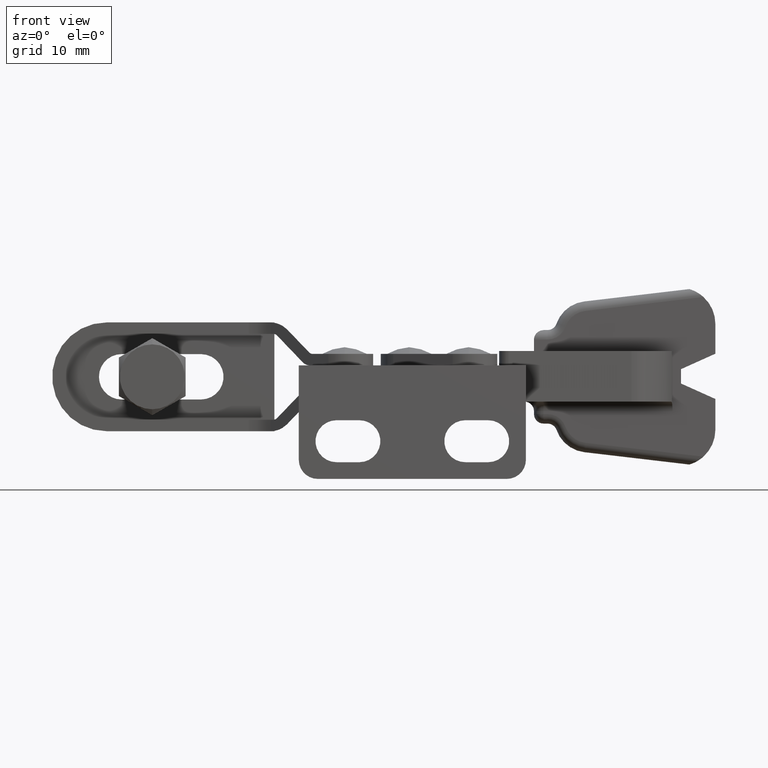
[diagram: clean part render]
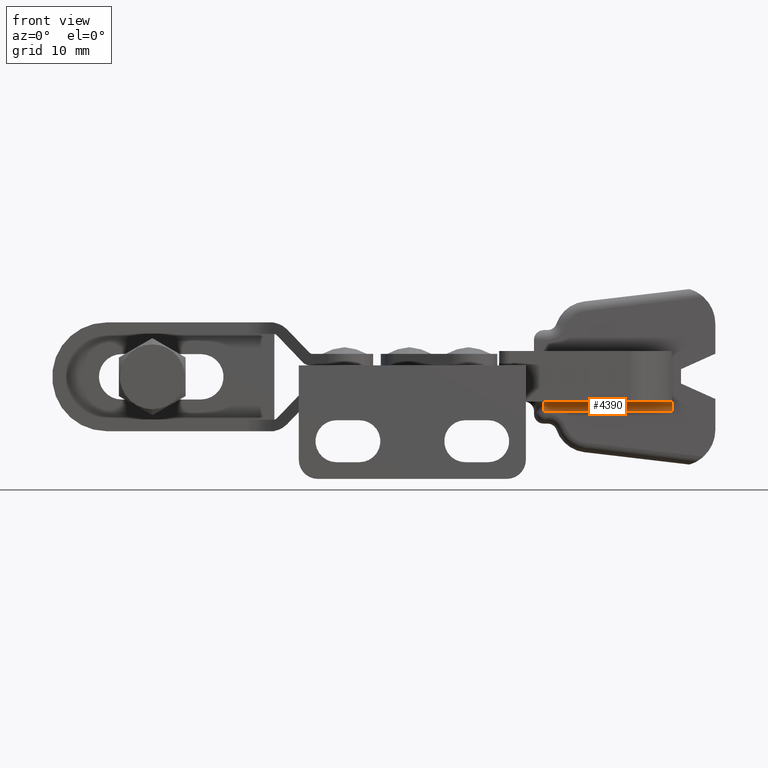
[diagram: same view with one face highlighted and labeled with its STEP entity id]
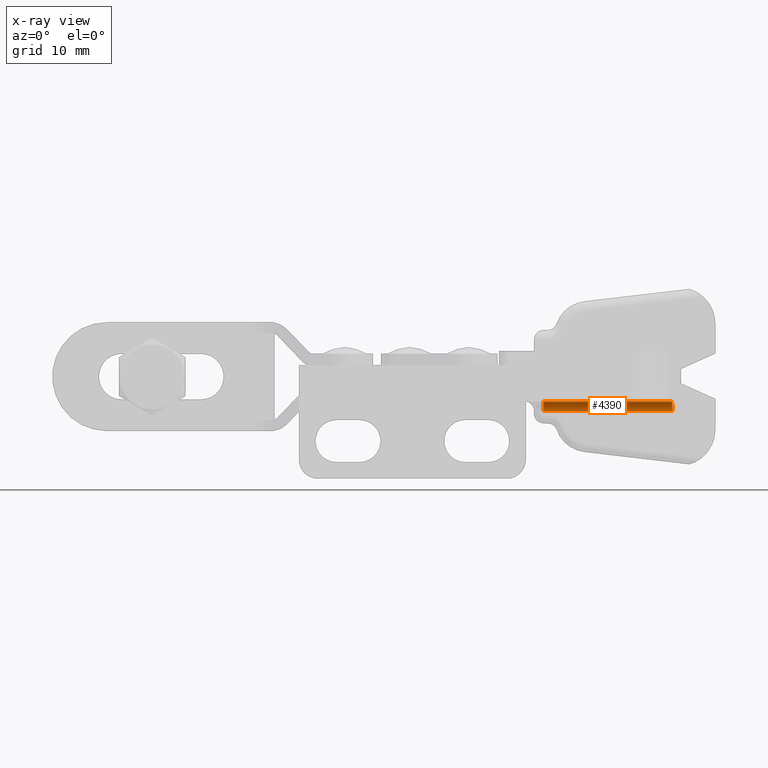
[diagram: x-ray of the same camera — body ghosted, the highlighted face saturated]
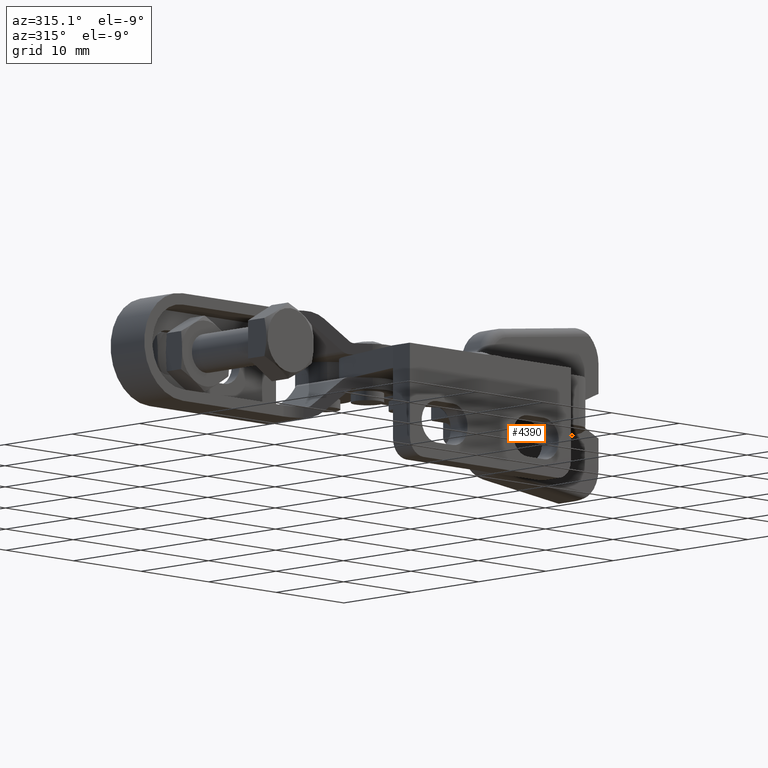
[diagram: same view with one face highlighted and labeled with its STEP entity id]
A machine part, front view. The second image highlights one B-rep face of the part: STEP entity #4390.
The next image is the same camera in x-ray: the body ghosted, the highlighted face saturated — about 0% of this face is hidden behind the body in this view.
A second angle (auxiliary view) of the same face is appended — the face is thin or edge-on in the first view.
In plain terms, the highlighted cylindrical surface (edge-blend (fillet) strip) has radius 1 mm, axis along (1, 0, 0).
Its self-contained STEP definition (entity closure, byte-faithful):
#126 = ORIENTED_EDGE ( 'NONE', *, *, #6259, .F. ) ;
#365 = EDGE_CURVE ( 'NONE', #4287, #5183, #3924, .T. ) ;
#521 = CARTESIAN_POINT ( 'NONE',  ( 39.15794684305910800, 15.80010390606980900, -3.600000000000005400 ) ) ;
#768 = LINE ( 'NONE', #2603, #8571 ) ;
#836 = DIRECTION ( 'NONE',  ( 0.9999999999956429300, 2.952003684069184900E-006, 0.0000000000000000000 ) ) ;
#1036 = CARTESIAN_POINT ( 'NONE',  ( 25.64798475125412500, 14.80006402460758400, -2.600000000000001900 ) ) ;
#1115 = CARTESIAN_POINT ( 'NONE',  ( 39.15500161006630000, 15.76140955872180500, -3.280321963074525300 ) ) ;
#1274 = CARTESIAN_POINT ( 'NONE',  ( 25.64798475125412500, 14.80006402460758400, -3.600000000000001900 ) ) ;
#1347 = ORIENTED_EDGE ( 'NONE', *, *, #365, .F. ) ;
#1665 = CARTESIAN_POINT ( 'NONE',  ( 39.10174319541200600, 15.23786983173046000, -2.696374666031764500 ) ) ;
#1835 = ORIENTED_EDGE ( 'NONE', *, *, #3674, .F. ) ;
#1987 = DIRECTION ( 'NONE',  ( -2.952003684900116200E-006, 0.9999999999956428200, 0.0000000000000000000 ) ) ;
#2024 = DIRECTION ( 'NONE',  ( 0.0000000000000000000, 0.0000000000000000000, -1.000000000000000000 ) ) ;
#2312 = EDGE_CURVE ( 'NONE', #4839, #4287, #768, .T. ) ;
#2346 = CARTESIAN_POINT ( 'NONE',  ( 39.04550936739934000, 14.89054046398708000, -2.600000000000001400 ) ) ;
#2374 = ORIENTED_EDGE ( 'NONE', *, *, #6654, .F. ) ;
#2409 = CARTESIAN_POINT ( 'NONE',  ( 39.02742774414829100, 14.80010352077259100, -2.600000000000001900 ) ) ;
#2516 =( BOUNDED_CURVE ( )  B_SPLINE_CURVE ( 3, ( #7961, #1115, #8746, #4369 ),
 .UNSPECIFIED., .F., .T. ) 
 B_SPLINE_CURVE_WITH_KNOTS ( ( 4, 4 ),
 ( 5.801362884906068600, 6.283185307179589800 ),
 .UNSPECIFIED. ) 
 CURVE ( )  GEOMETRIC_REPRESENTATION_ITEM ( )  RATIONAL_B_SPLINE_CURVE ( ( 1.000000000000000000, 0.9807473162318984800, 0.9807473162318984800, 1.000000000000000000 ) ) 
 REPRESENTATION_ITEM ( '' )  );
#2582 = FACE_OUTER_BOUND ( 'NONE', #6748, .T. ) ;
#2603 = CARTESIAN_POINT ( 'NONE',  ( 39.15794979506279100, 14.80010390607416700, -2.600000000000001900 ) ) ;
#2829 = CARTESIAN_POINT ( 'NONE',  ( 25.64798179925044200, 15.80006402460322900, -3.600000000000005400 ) ) ;
#2927 = CARTESIAN_POINT ( 'NONE',  ( 39.14928125499898900, 15.68625577412509400, -3.136605112885112200 ) ) ;
#2960 = DIRECTION ( 'NONE',  ( -0.9999999999956428200, -2.952003684069184500E-006, 0.0000000000000000000 ) ) ;
#3577 = CARTESIAN_POINT ( 'NONE',  ( 39.13131901076200600, 15.47037764635855700, -2.836164554242166100 ) ) ;
#3674 = EDGE_CURVE ( 'NONE', #5183, #4078, #2516, .T. ) ;
#3761 = CARTESIAN_POINT ( 'NONE',  ( 39.02742774414829100, 14.80010352077259100, -2.600000000000001900 ) ) ;
#3924 = B_SPLINE_CURVE_WITH_KNOTS ( 'NONE', 3,
 ( #2409, #2346, #7641, #6948, #1665, #3577, #8670, #7055 ),
 .UNSPECIFIED., .F., .F.,
 ( 4, 2, 2, 4 ),
 ( 0.0000000000000000000, 0.0002728234911347998800, 0.0005456469822695997500, 0.001091293964539197100 ),
 .UNSPECIFIED. ) ;
#4050 = CYLINDRICAL_SURFACE ( 'NONE', #6616, 1.000000000000000400 ) ;
#4078 = VERTEX_POINT ( 'NONE', #521 ) ;
#4287 = VERTEX_POINT ( 'NONE', #3761 ) ;
#4369 = CARTESIAN_POINT ( 'NONE',  ( 39.15794684305910800, 15.80010390606980900, -3.600000000000005400 ) ) ;
#4390 = ADVANCED_FACE ( 'NONE', ( #2582 ), #4050, .F. ) ;
#4839 = VERTEX_POINT ( 'NONE', #1036 ) ;
#4878 = ORIENTED_EDGE ( 'NONE', *, *, #2312, .F. ) ;
#5025 = CARTESIAN_POINT ( 'NONE',  ( 11.58574352799586800, 14.80002251281968900, -3.600000000000001900 ) ) ;
#5067 = LINE ( 'NONE', #7526, #9235 ) ;
#5108 = VERTEX_POINT ( 'NONE', #2829 ) ;
#5183 = VERTEX_POINT ( 'NONE', #2927 ) ;
#6259 = EDGE_CURVE ( 'NONE', #4078, #5108, #5067, .T. ) ;
#6483 = DIRECTION ( 'NONE',  ( 0.9999999999956428200, 2.952003684069184500E-006, -0.0000000000000000000 ) ) ;
#6569 = DIRECTION ( 'NONE',  ( 0.9999999999956429300, 2.952003684069184900E-006, 0.0000000000000000000 ) ) ;
#6616 = AXIS2_PLACEMENT_3D ( 'NONE', #5025, #836, #1987 ) ;
#6654 = EDGE_CURVE ( 'NONE', #5108, #4839, #6908, .T. ) ;
#6748 = EDGE_LOOP ( 'NONE', ( #1347, #4878, #2374, #126, #1835 ) ) ;
#6908 = CIRCLE ( 'NONE', #7404, 0.9999999999999995600 ) ;
#6948 = CARTESIAN_POINT ( 'NONE',  ( 39.08970629662736200, 15.15341468696194500, -2.660144471745029100 ) ) ;
#7055 = CARTESIAN_POINT ( 'NONE',  ( 39.14928125499898900, 15.68625577412509400, -3.136605112885112200 ) ) ;
#7404 = AXIS2_PLACEMENT_3D ( 'NONE', #1274, #6569, #2024 ) ;
#7526 = CARTESIAN_POINT ( 'NONE',  ( 24.64798179925480100, 15.80006107259954500, -3.600000000000005400 ) ) ;
#7641 = CARTESIAN_POINT ( 'NONE',  ( 39.06149329557833000, 14.97930202853590100, -2.612050104969355400 ) ) ;
#7961 = CARTESIAN_POINT ( 'NONE',  ( 39.14928125499898900, 15.68625577412509400, -3.136605112885112200 ) ) ;
#8571 = VECTOR ( 'NONE', #6483, 1000.000000000000100 ) ;
#8670 = CARTESIAN_POINT ( 'NONE',  ( 39.14277728225532400, 15.60080685341159100, -2.973200837199880400 ) ) ;
#8746 = CARTESIAN_POINT ( 'NONE',  ( 39.15794684305910100, 15.80010390606981300, -3.437819169352994000 ) ) ;
#9235 = VECTOR ( 'NONE', #2960, 1000.000000000000100 ) ;